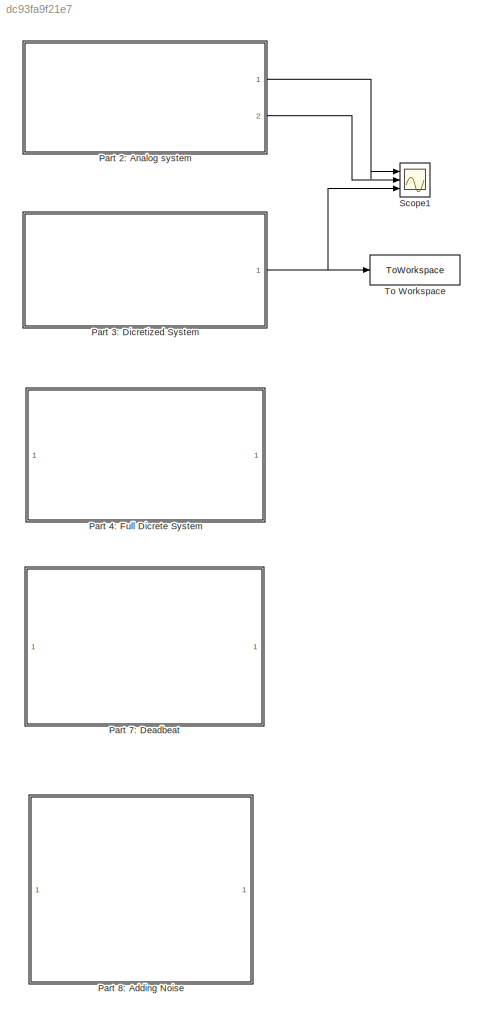
MODEL slx_dc93fa9f21e7
KIND model
CONFIG AbsTol = auto
CONFIG EnableMultiTasking = off
CONFIG FixedStep = auto
CONFIG MaxStep = auto
CONFIG MinStep = auto
CONFIG RelTol = 1e-3
CONFIG SampleTimeConstraint = Unconstrained
CONFIG Solver = VariableStepAuto
CONFIG SolverName = VariableStepAuto
CONFIG StartTime = 0.0
CONFIG StopTime = 2
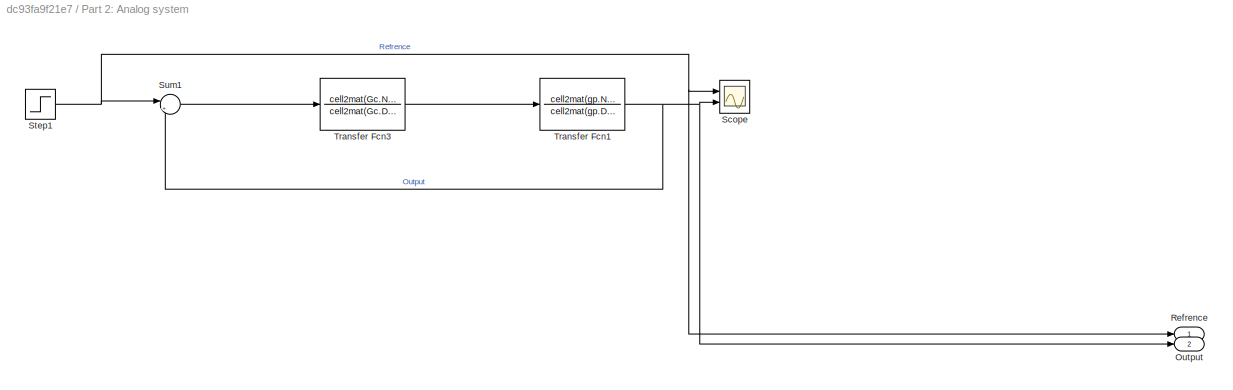
BLOCK [SubSystem] Part 2: Analog system
  Ports = [0, 2]
BLOCK [Outport] Part 2: Analog system/Output
  Port = 2
BLOCK [Outport] Part 2: Analog system/Refrence
BLOCK [Scope] Part 2: Analog system/Scope
  Floating = off
  NumInputPorts = 2
  Ports = [2]
  ScopeSpecificationString = Simulink.scopes.TimeScopeBlockCfg('CurrentConfiguration', extmgr.ConfigurationSet(extmgr.Configuration('Core','General UI',true),extmgr.Configuration('Core','Source UI',true),extmgr.Configuration('Sources','WiredSimulink',true,'DataLoggingVariableName','ScopeData1'),extmgr.Configuration('Visuals','Time Domain',true,'SerializedDisplays',{struct('MinYLimReal','-0.15771','MaxYLimReal','1.41943','YLab...<+1403ch>
BLOCK [Step] Part 2: Analog system/Step1
  SampleTime = 0
  Time = 0
BLOCK [Sum] Part 2: Analog system/Sum1
  Inputs = |+-
  Ports = [2, 1]
BLOCK [TransferFcn] Part 2: Analog system/Transfer Fcn1
  Denominator = cell2mat(gp.Denominator)
  Numerator = cell2mat(gp.Numerator)
BLOCK [TransferFcn] Part 2: Analog system/Transfer Fcn3
  Denominator = cell2mat(Gc.Denominator)
  Numerator = cell2mat(Gc.Numerator)
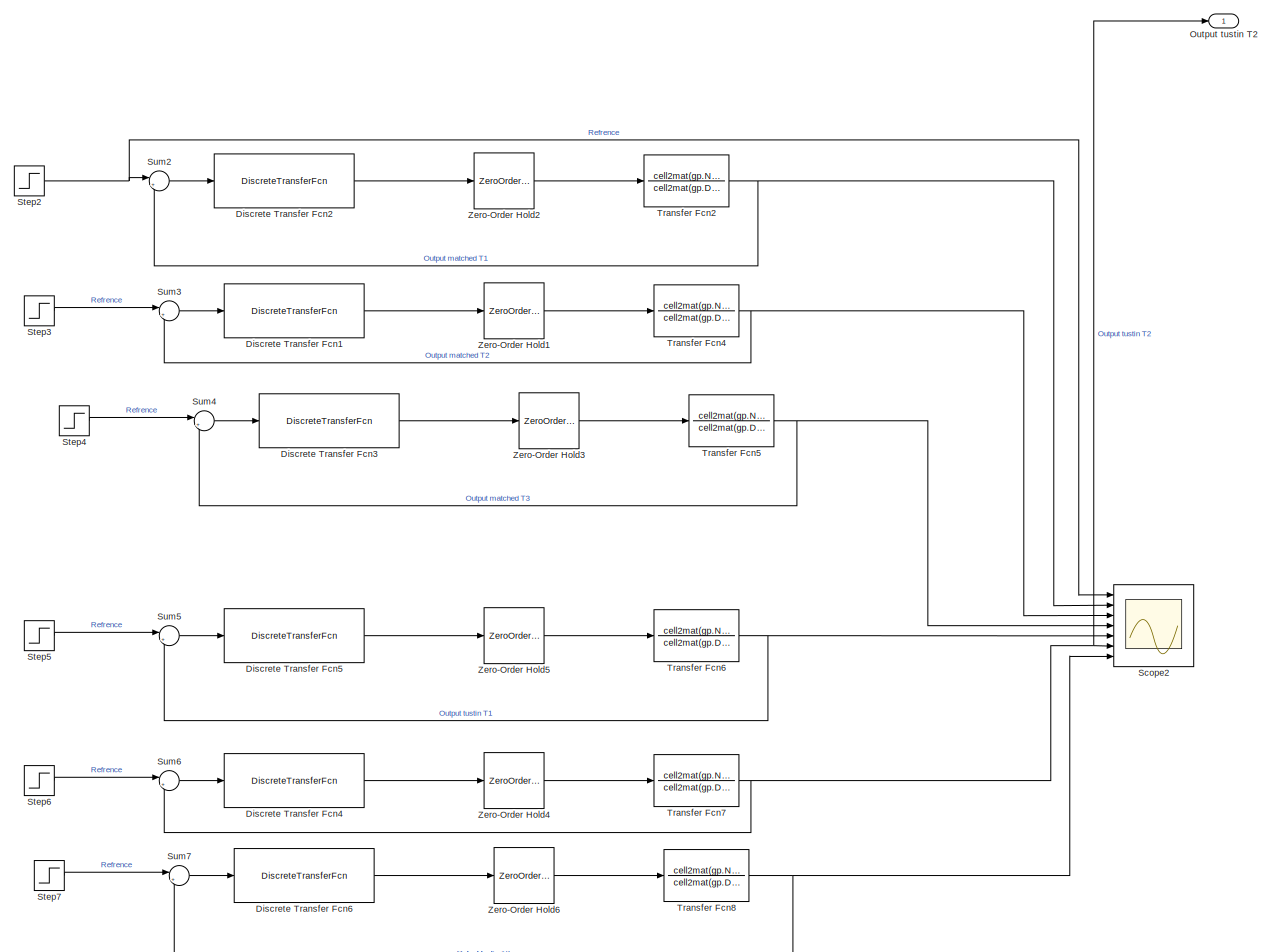
[diagram: Part 3: Dicretized System - part 1/2, most of the canvas]
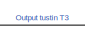
[diagram: Part 3: Dicretized System - part 2/2, bottom center region]
BLOCK [SubSystem] Part 3: Dicretized System
  Ports = [0, 1]
BLOCK [DiscreteTransferFcn] Part 3: Dicretized System/Discrete Transfer Fcn1
  Denominator = cell2mat(Gd_matched_T2.Denominator)
  InputPortMap = u0
  Numerator = cell2mat(Gd_matched_T2.Numerator)
  Ports = [1, 1]
  SampleTime = Ts(2)
BLOCK [DiscreteTransferFcn] Part 3: Dicretized System/Discrete Transfer Fcn2
  Denominator = cell2mat(Gd_matched_T1.Denominator)
  InputPortMap = u0
  Numerator = cell2mat(Gd_matched_T1.Numerator)
  Ports = [1, 1]
  SampleTime = Ts(1)
BLOCK [DiscreteTransferFcn] Part 3: Dicretized System/Discrete Transfer Fcn3
  Denominator = cell2mat(Gd_matched_T3.Denominator)
  InputPortMap = u0
  Numerator = cell2mat(Gd_matched_T3.Numerator)
  Ports = [1, 1]
  SampleTime = Ts(3)
BLOCK [DiscreteTransferFcn] Part 3: Dicretized System/Discrete Transfer Fcn4
  Denominator = cell2mat(Gd_tustin_T2.Denominator)
  InputPortMap = u0
  Numerator = cell2mat(Gd_tustin_T2.Numerator)
  Ports = [1, 1]
  SampleTime = Ts(2)
BLOCK [DiscreteTransferFcn] Part 3: Dicretized System/Discrete Transfer Fcn5
  Denominator = cell2mat(Gd_tustin_T1.Denominator)
  InputPortMap = u0
  Numerator = cell2mat(Gd_tustin_T1.Numerator)
  Ports = [1, 1]
  SampleTime = Ts(1)
BLOCK [DiscreteTransferFcn] Part 3: Dicretized System/Discrete Transfer Fcn6
  Denominator = cell2mat(Gd_tustin_T3.Denominator)
  InputPortMap = u0
  Numerator = cell2mat(Gd_tustin_T3.Numerator)
  Ports = [1, 1]
  SampleTime = Ts(3)
BLOCK [Outport] Part 3: Dicretized System/Output tustin T2
BLOCK [Scope] Part 3: Dicretized System/Scope2
  Floating = off
  NumInputPorts = 7
  Ports = [7]
  ScopeSpecificationString = Simulink.scopes.TimeScopeBlockCfg('CurrentConfiguration', extmgr.ConfigurationSet(extmgr.Configuration('Core','General UI',true),extmgr.Configuration('Core','Source UI',true),extmgr.Configuration('Sources','WiredSimulink',true),extmgr.Configuration('Visuals','Time Domain',true,'SerializedDisplays',{struct('MinYLimReal','-0.5','MaxYLimReal','1.5','YLabelReal','','MinYLimMag','  0.00000','MaxYLimMag...<+1517ch>
BLOCK [Step] Part 3: Dicretized System/Step2
  SampleTime = 0
  Time = 0
BLOCK [Step] Part 3: Dicretized System/Step3
  SampleTime = 0
  Time = 0
BLOCK [Step] Part 3: Dicretized System/Step4
  SampleTime = 0
  Time = 0
BLOCK [Step] Part 3: Dicretized System/Step5
  SampleTime = 0
  Time = 0
BLOCK [Step] Part 3: Dicretized System/Step6
  SampleTime = 0
  Time = 0
BLOCK [Step] Part 3: Dicretized System/Step7
  SampleTime = 0
  Time = 0
BLOCK [Sum] Part 3: Dicretized System/Sum2
  Inputs = |+-
  Ports = [2, 1]
BLOCK [Sum] Part 3: Dicretized System/Sum3
  Inputs = |+-
  Ports = [2, 1]
BLOCK [Sum] Part 3: Dicretized System/Sum4
  Inputs = |+-
  Ports = [2, 1]
BLOCK [Sum] Part 3: Dicretized System/Sum5
  Inputs = |+-
  Ports = [2, 1]
BLOCK [Sum] Part 3: Dicretized System/Sum6
  Inputs = |+-
  Ports = [2, 1]
BLOCK [Sum] Part 3: Dicretized System/Sum7
  Inputs = |+-
  Ports = [2, 1]
BLOCK [TransferFcn] Part 3: Dicretized System/Transfer Fcn2
  Denominator = cell2mat(gp.Denominator)
  Numerator = cell2mat(gp.Numerator)
BLOCK [TransferFcn] Part 3: Dicretized System/Transfer Fcn4
  Denominator = cell2mat(gp.Denominator)
  Numerator = cell2mat(gp.Numerator)
BLOCK [TransferFcn] Part 3: Dicretized System/Transfer Fcn5
  Denominator = cell2mat(gp.Denominator)
  Numerator = cell2mat(gp.Numerator)
BLOCK [TransferFcn] Part 3: Dicretized System/Transfer Fcn6
  Denominator = cell2mat(gp.Denominator)
  Numerator = cell2mat(gp.Numerator)
BLOCK [TransferFcn] Part 3: Dicretized System/Transfer Fcn7
  Denominator = cell2mat(gp.Denominator)
  Numerator = cell2mat(gp.Numerator)
BLOCK [TransferFcn] Part 3: Dicretized System/Transfer Fcn8
  Denominator = cell2mat(gp.Denominator)
  Numerator = cell2mat(gp.Numerator)
BLOCK [ZeroOrderHold] Part 3: Dicretized System/Zero-Order Hold1
  SampleTime = Ts(2)
BLOCK [ZeroOrderHold] Part 3: Dicretized System/Zero-Order Hold2
  SampleTime = Ts(1)
BLOCK [ZeroOrderHold] Part 3: Dicretized System/Zero-Order Hold3
  SampleTime = Ts(3)
BLOCK [ZeroOrderHold] Part 3: Dicretized System/Zero-Order Hold4
  SampleTime = Ts(2)
BLOCK [ZeroOrderHold] Part 3: Dicretized System/Zero-Order Hold5
  SampleTime = Ts(1)
BLOCK [ZeroOrderHold] Part 3: Dicretized System/Zero-Order Hold6
  SampleTime = Ts(3)
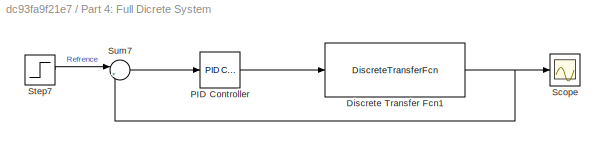
BLOCK [SubSystem] Part 4: Full Dicrete System
  Ports = []
BLOCK [DiscreteTransferFcn] Part 4: Full Dicrete System/Discrete Transfer Fcn1
  Denominator = cell2mat(G.Denominator)
  InputPortMap = u0
  Numerator = cell2mat(G.Numerator)
  Ports = [1, 1]
  SampleTime = Ts(2)
BLOCK [Reference] Part 4: Full Dicrete System/PID Controller  REF=simulink/Continuous/PID Controller
  Ports = [1, 1]
  SourceBlock = simulink/Continuous/PID Controller
  SourceType = PID 1dof
BLOCK [Scope] Part 4: Full Dicrete System/Scope
  Floating = off
  NumInputPorts = 1
  Ports = [1]
  ScopeSpecificationString = Simulink.scopes.TimeScopeBlockCfg('CurrentConfiguration', extmgr.ConfigurationSet(extmgr.Configuration('Core','General UI',true),extmgr.Configuration('Core','Source UI',true),extmgr.Configuration('Sources','WiredSimulink',true,'DataLoggingVariableName','ScopeData1'),extmgr.Configuration('Visuals','Time Domain',true,'SerializedDisplays',{struct('MinYLimReal','-0.16101','MaxYLimReal','1.44906','YLab...<+1410ch>
BLOCK [Step] Part 4: Full Dicrete System/Step7
  SampleTime = 0
  Time = 0
BLOCK [Sum] Part 4: Full Dicrete System/Sum7
  Inputs = |+-
  Ports = [2, 1]
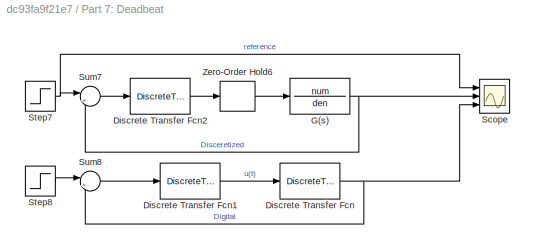
BLOCK [SubSystem] Part 7: Deadbeat
  Ports = []
BLOCK [DiscreteTransferFcn] Part 7: Deadbeat/Discrete Transfer Fcn
  Denominator = cell2mat(Gdiscrete.Denominator)
  InputPortMap = u0
  Numerator = cell2mat(Gdiscrete.Numerator)
  Ports = [1, 1]
  SampleTime = Ts(2)
BLOCK [DiscreteTransferFcn] Part 7: Deadbeat/Discrete Transfer Fcn1
  Denominator = cell2mat(Gdb.Denominator)
  InputPortMap = u0
  Numerator = cell2mat(Gdb.Numerator)
  Ports = [1, 1]
  SampleTime = Ts(2)
BLOCK [DiscreteTransferFcn] Part 7: Deadbeat/Discrete Transfer Fcn2
  Denominator = cell2mat(Gdb.Denominator)
  InputPortMap = u0
  Numerator = cell2mat(Gdb.Numerator)
  Ports = [1, 1]
  SampleTime = Ts(2)
BLOCK [TransferFcn] Part 7: Deadbeat/G(s)
  Denominator = den
  Numerator = num
BLOCK [Scope] Part 7: Deadbeat/Scope
  Floating = off
  NumInputPorts = 3
  Ports = [3]
  ScopeSpecificationString = Simulink.scopes.TimeScopeBlockCfg('CurrentConfiguration', extmgr.ConfigurationSet(extmgr.Configuration('Core','General UI',true),extmgr.Configuration('Core','Source UI',true),extmgr.Configuration('Sources','WiredSimulink',true,'DataLoggingVariableName','ScopeData1'),extmgr.Configuration('Visuals','Time Domain',true,'SerializedDisplays',{struct('MinYLimReal','0.84092','MaxYLimReal','1.19811','YLabe...<+1437ch>
BLOCK [Step] Part 7: Deadbeat/Step7
  SampleTime = 0
  Time = 0
BLOCK [Step] Part 7: Deadbeat/Step8
  SampleTime = 0
  Time = 0
BLOCK [Sum] Part 7: Deadbeat/Sum7
  Inputs = |+-
  Ports = [2, 1]
BLOCK [Sum] Part 7: Deadbeat/Sum8
  Inputs = |+-
  Ports = [2, 1]
BLOCK [ZeroOrderHold] Part 7: Deadbeat/Zero-Order Hold6
  SampleTime = Ts(2)
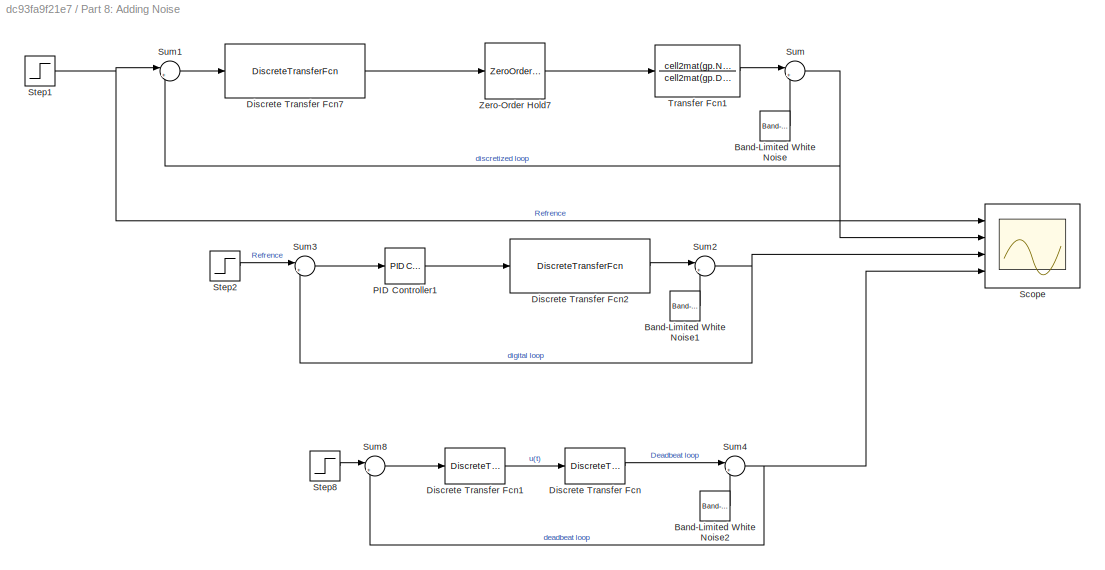
BLOCK [SubSystem] Part 8: Adding Noise
  Ports = []
BLOCK [Reference] Part 8: Adding Noise/Band-Limited White Noise  REF=simulink/Sources/Band-Limited
White Noise
  Ports = [0, 1]
  SourceBlock = simulink/Sources/Band-Limited\nWhite Noise
  SourceType = Band-Limited White Noise.
BLOCK [Reference] Part 8: Adding Noise/Band-Limited White Noise1  REF=simulink/Sources/Band-Limited
White Noise
  Ports = [0, 1]
  SourceBlock = simulink/Sources/Band-Limited\nWhite Noise
  SourceType = Band-Limited White Noise.
BLOCK [Reference] Part 8: Adding Noise/Band-Limited White Noise2  REF=simulink/Sources/Band-Limited
White Noise
  Ports = [0, 1]
  SourceBlock = simulink/Sources/Band-Limited\nWhite Noise
  SourceType = Band-Limited White Noise.
BLOCK [DiscreteTransferFcn] Part 8: Adding Noise/Discrete Transfer Fcn
  Denominator = cell2mat(Gdiscrete.Denominator)
  InputPortMap = u0
  Numerator = cell2mat(Gdiscrete.Numerator)
  Ports = [1, 1]
  SampleTime = Ts(2)
BLOCK [DiscreteTransferFcn] Part 8: Adding Noise/Discrete Transfer Fcn1
  Denominator = cell2mat(Gdb.Denominator)
  InputPortMap = u0
  Numerator = cell2mat(Gdb.Numerator)
  Ports = [1, 1]
  SampleTime = Ts(2)
BLOCK [DiscreteTransferFcn] Part 8: Adding Noise/Discrete Transfer Fcn2
  Denominator = cell2mat(G.Denominator)
  InputPortMap = u0
  Numerator = cell2mat(G.Numerator)
  Ports = [1, 1]
  SampleTime = Ts(2)
BLOCK [DiscreteTransferFcn] Part 8: Adding Noise/Discrete Transfer Fcn7
  Denominator = cell2mat(Gd_tustin_T2.Denominator)
  InputPortMap = u0
  Numerator = cell2mat(Gd_tustin_T2.Numerator)
  Ports = [1, 1]
  SampleTime = Ts(2)
BLOCK [Reference] Part 8: Adding Noise/PID Controller1  REF=simulink/Continuous/PID Controller
  Ports = [1, 1]
  SourceBlock = simulink/Continuous/PID Controller
  SourceType = PID 1dof
BLOCK [Scope] Part 8: Adding Noise/Scope
  Floating = off
  NumInputPorts = 4
  Ports = [4]
  ScopeSpecificationString = Simulink.scopes.TimeScopeBlockCfg('CurrentConfiguration', extmgr.ConfigurationSet(extmgr.Configuration('Core','General UI',true),extmgr.Configuration('Core','Source UI',true),extmgr.Configuration('Sources','WiredSimulink',true,'DataLoggingVariableName','ScopeData2'),extmgr.Configuration('Visuals','Time Domain',true,'SerializedDisplays',{struct('MinYLimReal','-0.25603','MaxYLimReal','2.41699','YLab...<+1450ch>
BLOCK [Step] Part 8: Adding Noise/Step1
  SampleTime = 0
  Time = 0
BLOCK [Step] Part 8: Adding Noise/Step2
  SampleTime = 0
  Time = 0
BLOCK [Step] Part 8: Adding Noise/Step8
  SampleTime = 0
  Time = 0
BLOCK [Sum] Part 8: Adding Noise/Sum
  Inputs = |++
  Ports = [2, 1]
BLOCK [Sum] Part 8: Adding Noise/Sum1
  Inputs = |+-
  Ports = [2, 1]
BLOCK [Sum] Part 8: Adding Noise/Sum2
  Inputs = |++
  Ports = [2, 1]
BLOCK [Sum] Part 8: Adding Noise/Sum3
  Inputs = |+-
  Ports = [2, 1]
BLOCK [Sum] Part 8: Adding Noise/Sum4
  Inputs = |++
  Ports = [2, 1]
BLOCK [Sum] Part 8: Adding Noise/Sum8
  Inputs = |+-
  Ports = [2, 1]
BLOCK [TransferFcn] Part 8: Adding Noise/Transfer Fcn1
  Denominator = cell2mat(gp.Denominator)
  Numerator = cell2mat(gp.Numerator)
BLOCK [ZeroOrderHold] Part 8: Adding Noise/Zero-Order Hold7
  SampleTime = Ts(2)
BLOCK [Scope] Scope1
  Floating = off
  NumInputPorts = 3
  Ports = [3]
  ScopeSpecificationString = Simulink.scopes.TimeScopeBlockCfg('CurrentConfiguration', extmgr.ConfigurationSet(extmgr.Configuration('Core','General UI',true),extmgr.Configuration('Core','Source UI',true),extmgr.Configuration('Sources','WiredSimulink',true,'DataLoggingVariableName','ScopeData2'),extmgr.Configuration('Visuals','Time Domain',true,'SerializedDisplays',{struct('MinYLimReal','-0.15919','MaxYLimReal','1.43269','YLab...<+1494ch>
BLOCK [ToWorkspace] To Workspace
  FixptAsFi = on
  MaxDataPoints = inf
  Ports = [1]
  SampleTime = -1
  SaveFormat = Timeseries
  VariableName = simout
NET Part 2: Analog system/Step1:1 -> Part 2: Analog system/Refrence:1, Part 2: Analog system/Scope:1, Part 2: Analog system/Sum1:1
LINE Part 2: Analog system/Sum1:1 -> Part 2: Analog system/Transfer Fcn3:1
NET Part 2: Analog system/Transfer Fcn1:1 -> Part 2: Analog system/Output:1, Part 2: Analog system/Scope:2, Part 2: Analog system/Sum1:2
LINE Part 2: Analog system/Transfer Fcn3:1 -> Part 2: Analog system/Transfer Fcn1:1
LINE Part 2: Analog system:1 -> Scope1:1
LINE Part 2: Analog system:2 -> Scope1:2
LINE Part 3: Dicretized System/Discrete Transfer Fcn1:1 -> Part 3: Dicretized System/Zero-Order Hold1:1
LINE Part 3: Dicretized System/Discrete Transfer Fcn2:1 -> Part 3: Dicretized System/Zero-Order Hold2:1
LINE Part 3: Dicretized System/Discrete Transfer Fcn3:1 -> Part 3: Dicretized System/Zero-Order Hold3:1
LINE Part 3: Dicretized System/Discrete Transfer Fcn4:1 -> Part 3: Dicretized System/Zero-Order Hold4:1
LINE Part 3: Dicretized System/Discrete Transfer Fcn5:1 -> Part 3: Dicretized System/Zero-Order Hold5:1
LINE Part 3: Dicretized System/Discrete Transfer Fcn6:1 -> Part 3: Dicretized System/Zero-Order Hold6:1
NET Part 3: Dicretized System/Step2:1 -> Part 3: Dicretized System/Scope2:1, Part 3: Dicretized System/Sum2:1
LINE Part 3: Dicretized System/Step3:1 -> Part 3: Dicretized System/Sum3:1
LINE Part 3: Dicretized System/Step4:1 -> Part 3: Dicretized System/Sum4:1
LINE Part 3: Dicretized System/Step5:1 -> Part 3: Dicretized System/Sum5:1
LINE Part 3: Dicretized System/Step6:1 -> Part 3: Dicretized System/Sum6:1
LINE Part 3: Dicretized System/Step7:1 -> Part 3: Dicretized System/Sum7:1
LINE Part 3: Dicretized System/Sum2:1 -> Part 3: Dicretized System/Discrete Transfer Fcn2:1
LINE Part 3: Dicretized System/Sum3:1 -> Part 3: Dicretized System/Discrete Transfer Fcn1:1
LINE Part 3: Dicretized System/Sum4:1 -> Part 3: Dicretized System/Discrete Transfer Fcn3:1
LINE Part 3: Dicretized System/Sum5:1 -> Part 3: Dicretized System/Discrete Transfer Fcn5:1
LINE Part 3: Dicretized System/Sum6:1 -> Part 3: Dicretized System/Discrete Transfer Fcn4:1
LINE Part 3: Dicretized System/Sum7:1 -> Part 3: Dicretized System/Discrete Transfer Fcn6:1
NET Part 3: Dicretized System/Transfer Fcn2:1 -> Part 3: Dicretized System/Scope2:2, Part 3: Dicretized System/Sum2:2
NET Part 3: Dicretized System/Transfer Fcn4:1 -> Part 3: Dicretized System/Scope2:3, Part 3: Dicretized System/Sum3:2
NET Part 3: Dicretized System/Transfer Fcn5:1 -> Part 3: Dicretized System/Scope2:4, Part 3: Dicretized System/Sum4:2
NET Part 3: Dicretized System/Transfer Fcn6:1 -> Part 3: Dicretized System/Scope2:5, Part 3: Dicretized System/Sum5:2
NET Part 3: Dicretized System/Transfer Fcn7:1 -> Part 3: Dicretized System/Output tustin T2:1, Part 3: Dicretized System/Scope2:6, Part 3: Dicretized System/Sum6:2
NET Part 3: Dicretized System/Transfer Fcn8:1 -> Part 3: Dicretized System/Scope2:7, Part 3: Dicretized System/Sum7:2
LINE Part 3: Dicretized System/Zero-Order Hold1:1 -> Part 3: Dicretized System/Transfer Fcn4:1
LINE Part 3: Dicretized System/Zero-Order Hold2:1 -> Part 3: Dicretized System/Transfer Fcn2:1
LINE Part 3: Dicretized System/Zero-Order Hold3:1 -> Part 3: Dicretized System/Transfer Fcn5:1
LINE Part 3: Dicretized System/Zero-Order Hold4:1 -> Part 3: Dicretized System/Transfer Fcn7:1
LINE Part 3: Dicretized System/Zero-Order Hold5:1 -> Part 3: Dicretized System/Transfer Fcn6:1
LINE Part 3: Dicretized System/Zero-Order Hold6:1 -> Part 3: Dicretized System/Transfer Fcn8:1
NET Part 3: Dicretized System:1 -> Scope1:3, To Workspace:1
NET Part 4: Full Dicrete System/Discrete Transfer Fcn1:1 -> Part 4: Full Dicrete System/Scope:1, Part 4: Full Dicrete System/Sum7:2
LINE Part 4: Full Dicrete System/PID Controller:1 -> Part 4: Full Dicrete System/Discrete Transfer Fcn1:1
LINE Part 4: Full Dicrete System/Step7:1 -> Part 4: Full Dicrete System/Sum7:1
LINE Part 4: Full Dicrete System/Sum7:1 -> Part 4: Full Dicrete System/PID Controller:1
LINE Part 7: Deadbeat/Discrete Transfer Fcn1:1 -> Part 7: Deadbeat/Discrete Transfer Fcn:1
LINE Part 7: Deadbeat/Discrete Transfer Fcn2:1 -> Part 7: Deadbeat/Zero-Order Hold6:1
NET Part 7: Deadbeat/Discrete Transfer Fcn:1 -> Part 7: Deadbeat/Scope:3, Part 7: Deadbeat/Sum8:2
NET Part 7: Deadbeat/G(s):1 -> Part 7: Deadbeat/Scope:2, Part 7: Deadbeat/Sum7:2
NET Part 7: Deadbeat/Step7:1 -> Part 7: Deadbeat/Scope:1, Part 7: Deadbeat/Sum7:1
LINE Part 7: Deadbeat/Step8:1 -> Part 7: Deadbeat/Sum8:1
LINE Part 7: Deadbeat/Sum7:1 -> Part 7: Deadbeat/Discrete Transfer Fcn2:1
LINE Part 7: Deadbeat/Sum8:1 -> Part 7: Deadbeat/Discrete Transfer Fcn1:1
LINE Part 7: Deadbeat/Zero-Order Hold6:1 -> Part 7: Deadbeat/G(s):1
LINE Part 8: Adding Noise/Band-Limited White Noise1:1 -> Part 8: Adding Noise/Sum2:2
LINE Part 8: Adding Noise/Band-Limited White Noise2:1 -> Part 8: Adding Noise/Sum4:2
LINE Part 8: Adding Noise/Band-Limited White Noise:1 -> Part 8: Adding Noise/Sum:2
LINE Part 8: Adding Noise/Discrete Transfer Fcn1:1 -> Part 8: Adding Noise/Discrete Transfer Fcn:1
LINE Part 8: Adding Noise/Discrete Transfer Fcn2:1 -> Part 8: Adding Noise/Sum2:1
LINE Part 8: Adding Noise/Discrete Transfer Fcn7:1 -> Part 8: Adding Noise/Zero-Order Hold7:1
LINE Part 8: Adding Noise/Discrete Transfer Fcn:1 -> Part 8: Adding Noise/Sum4:1
LINE Part 8: Adding Noise/PID Controller1:1 -> Part 8: Adding Noise/Discrete Transfer Fcn2:1
NET Part 8: Adding Noise/Step1:1 -> Part 8: Adding Noise/Scope:1, Part 8: Adding Noise/Sum1:1
LINE Part 8: Adding Noise/Step2:1 -> Part 8: Adding Noise/Sum3:1
LINE Part 8: Adding Noise/Step8:1 -> Part 8: Adding Noise/Sum8:1
LINE Part 8: Adding Noise/Sum1:1 -> Part 8: Adding Noise/Discrete Transfer Fcn7:1
NET Part 8: Adding Noise/Sum2:1 -> Part 8: Adding Noise/Scope:3, Part 8: Adding Noise/Sum3:2
LINE Part 8: Adding Noise/Sum3:1 -> Part 8: Adding Noise/PID Controller1:1
NET Part 8: Adding Noise/Sum4:1 -> Part 8: Adding Noise/Scope:4, Part 8: Adding Noise/Sum8:2
LINE Part 8: Adding Noise/Sum8:1 -> Part 8: Adding Noise/Discrete Transfer Fcn1:1
NET Part 8: Adding Noise/Sum:1 -> Part 8: Adding Noise/Scope:2, Part 8: Adding Noise/Sum1:2
LINE Part 8: Adding Noise/Transfer Fcn1:1 -> Part 8: Adding Noise/Sum:1
LINE Part 8: Adding Noise/Zero-Order Hold7:1 -> Part 8: Adding Noise/Transfer Fcn1:1
note: NET lines group one-source signal fan-out (src -> all destinations, sorted); 1:1 wires keep LINE
